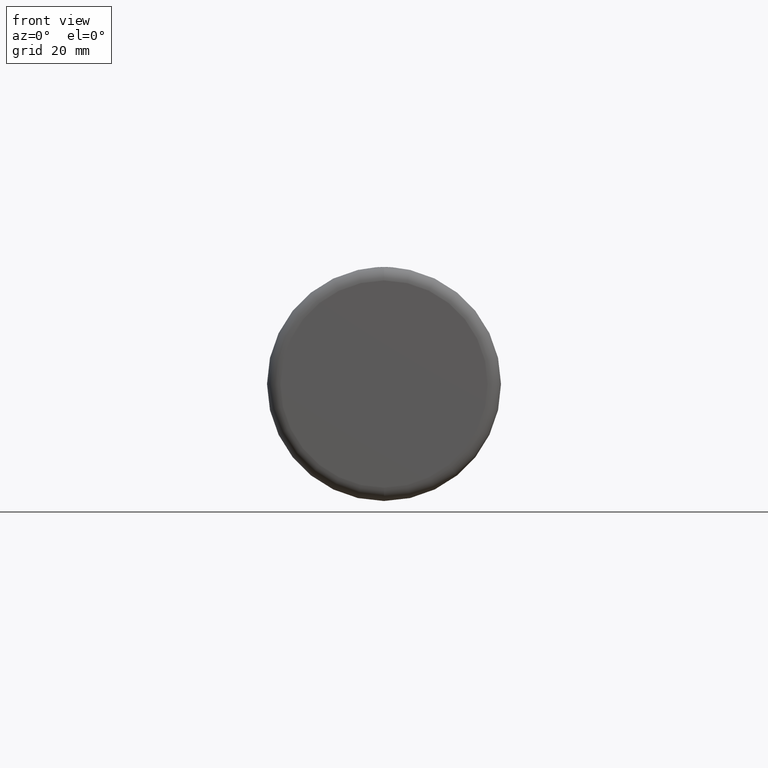
[diagram: clean part render]
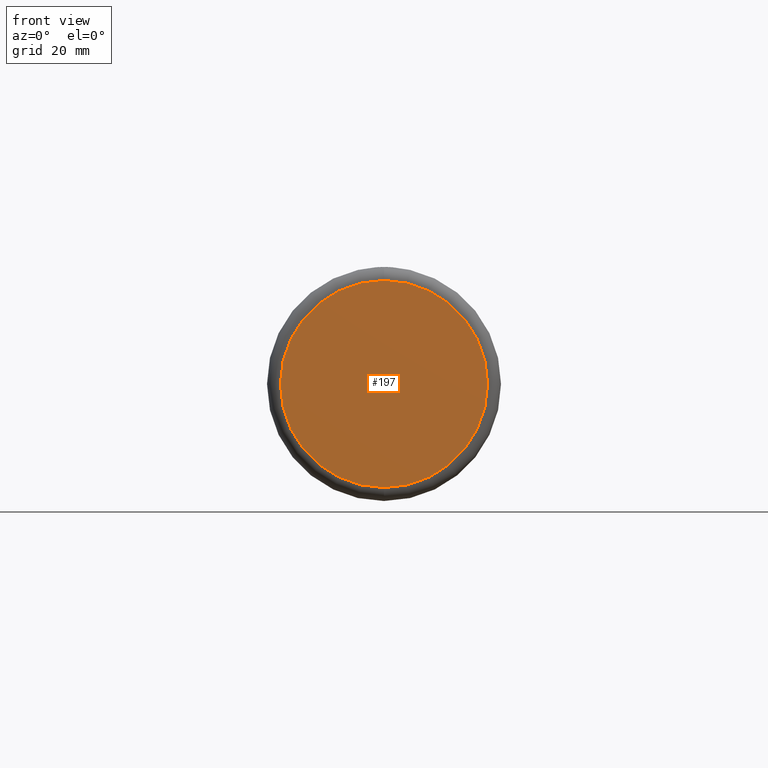
[diagram: same view with one face highlighted and labeled with its STEP entity id]
A machine part, front view. The second image highlights one B-rep face of the part: STEP entity #197.
In plain terms, the highlighted planar face has unit normal (0, 1, 0).
Its self-contained STEP definition (entity closure, byte-faithful):
#197 = ADVANCED_FACE ( 'NONE', ( #439 ), #4483, .F. ) ;
#439 = FACE_OUTER_BOUND ( 'NONE', #3269, .T. ) ;
#943 = CIRCLE ( 'NONE', #3083, 18.13839999999999700 ) ;
#1050 = AXIS2_PLACEMENT_3D ( 'NONE', #2006, #2767, #3080 ) ;
#1364 = EDGE_CURVE ( 'NONE', #1875, #3268, #943, .T. ) ;
#1391 = CARTESIAN_POINT ( 'NONE',  ( 0.0000000000000000000, 0.0000000000000000000, 18.13839999999999700 ) ) ;
#1720 = ORIENTED_EDGE ( 'NONE', *, *, #2469, .T. ) ;
#1875 = VERTEX_POINT ( 'NONE', #1391 ) ;
#1975 = CARTESIAN_POINT ( 'NONE',  ( 2.365919644208754400E-015, 0.0000000000000000000, -18.13839999999999700 ) ) ;
#2006 = CARTESIAN_POINT ( 'NONE',  ( 0.0000000000000000000, 0.0000000000000000000, 0.0000000000000000000 ) ) ;
#2010 = DIRECTION ( 'NONE',  ( -0.0000000000000000000, -1.000000000000000000, -0.0000000000000000000 ) ) ;
#2469 = EDGE_CURVE ( 'NONE', #3268, #1875, #3046, .T. ) ;
#2715 = CARTESIAN_POINT ( 'NONE',  ( 0.0000000000000000000, 0.0000000000000000000, 0.0000000000000000000 ) ) ;
#2767 = DIRECTION ( 'NONE',  ( 0.0000000000000000000, 1.000000000000000000, 0.0000000000000000000 ) ) ;
#2824 = DIRECTION ( 'NONE',  ( 0.0000000000000000000, 0.0000000000000000000, 1.000000000000000000 ) ) ;
#2879 = ORIENTED_EDGE ( 'NONE', *, *, #1364, .T. ) ;
#3046 = CIRCLE ( 'NONE', #3147, 18.13839999999999700 ) ;
#3080 = DIRECTION ( 'NONE',  ( 0.0000000000000000000, -0.0000000000000000000, 1.000000000000000000 ) ) ;
#3083 = AXIS2_PLACEMENT_3D ( 'NONE', #2715, #3761, #4464 ) ;
#3112 = CARTESIAN_POINT ( 'NONE',  ( 0.0000000000000000000, 0.0000000000000000000, 0.0000000000000000000 ) ) ;
#3147 = AXIS2_PLACEMENT_3D ( 'NONE', #3112, #2010, #2824 ) ;
#3268 = VERTEX_POINT ( 'NONE', #1975 ) ;
#3269 = EDGE_LOOP ( 'NONE', ( #2879, #1720 ) ) ;
#3761 = DIRECTION ( 'NONE',  ( -0.0000000000000000000, -1.000000000000000000, -0.0000000000000000000 ) ) ;
#4464 = DIRECTION ( 'NONE',  ( 0.0000000000000000000, 0.0000000000000000000, 1.000000000000000000 ) ) ;
#4483 = PLANE ( 'NONE',  #1050 ) ;